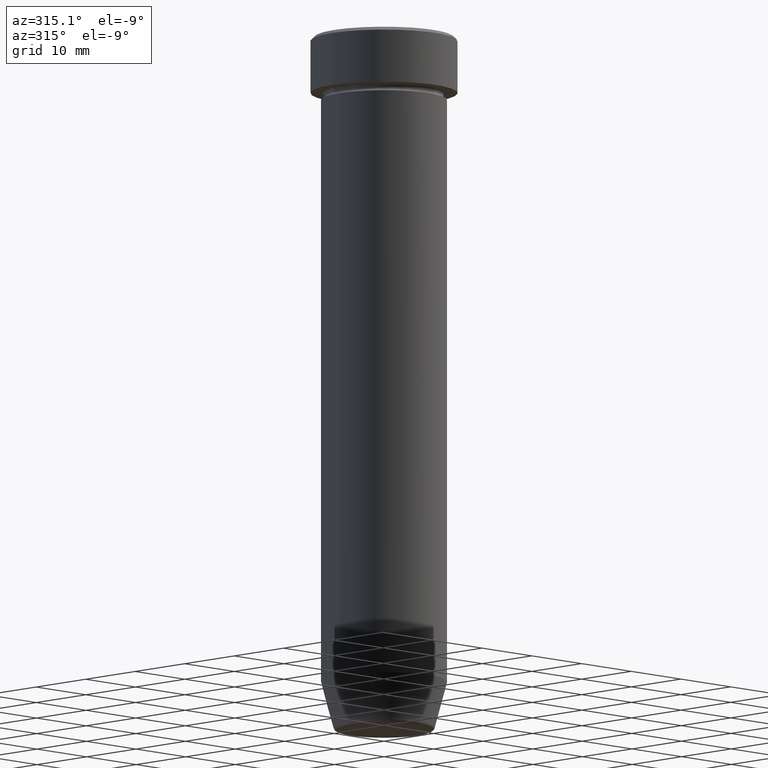
[diagram: clean part render]
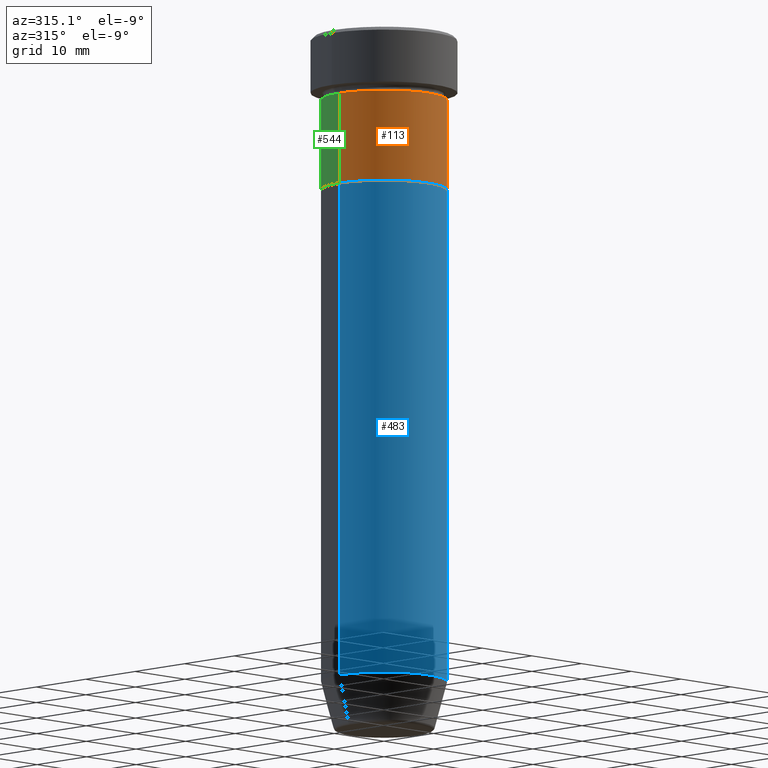
[diagram: same view with three faces highlighted in distinct colors, each labeled with its STEP entity id]
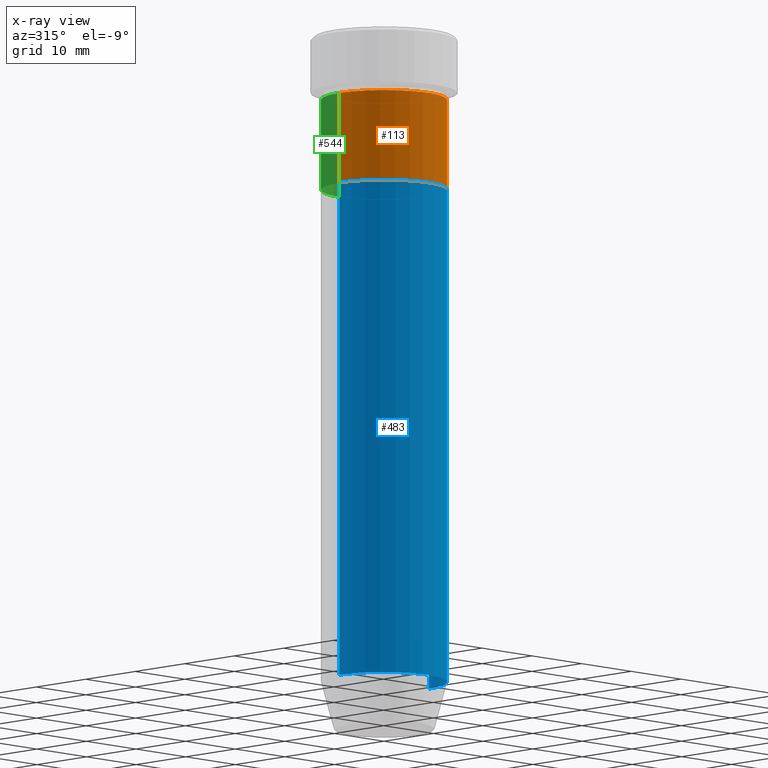
[diagram: x-ray of the same camera — body ghosted, the three highlighted faces saturated]
A machine part, auxiliary view with three faces highlighted in distinct colors.
The next image is the same camera in x-ray (body ghosted, the three faces saturated) — at least one of them is partly hidden behind the body in this view.
Their STEP definitions:

[orange] entity #113 — the highlighted cylindrical surface (partial cylindrical patch) has radius 9 mm, axis along (-0, -0, 1).
#11 = LINE ( 'NONE', #205, #412 ) ;
#14 = CARTESIAN_POINT ( 'NONE',  ( -9.000000000000000000, 1.102182119232617714E-15, -9.000000000000001776 ) ) ;
#53 = DIRECTION ( 'NONE',  ( -0.000000000000000000, -0.000000000000000000, 1.000000000000000000 ) ) ;
#68 = CARTESIAN_POINT ( 'NONE',  ( 0.000000000000000000, 0.000000000000000000, -22.00000000000000000 ) ) ;
#113 = ADVANCED_FACE ( 'NONE', ( #186 ), #327, .T. ) ;
#128 = ORIENTED_EDGE ( 'NONE', *, *, #240, .T. ) ;
#167 = CARTESIAN_POINT ( 'NONE',  ( -9.000000000000000000, 1.102182119232617714E-15, 0.000000000000000000 ) ) ;
#169 = LINE ( 'NONE', #167, #596 ) ;
#186 = FACE_OUTER_BOUND ( 'NONE', #455, .T. ) ;
#193 = EDGE_CURVE ( 'NONE', #239, #295, #476, .T. ) ;
#205 = CARTESIAN_POINT ( 'NONE',  ( 9.000000000000000000, 0.000000000000000000, 0.000000000000000000 ) ) ;
#239 = VERTEX_POINT ( 'NONE', #14 ) ;
#240 = EDGE_CURVE ( 'NONE', #400, #295, #11, .T. ) ;
#295 = VERTEX_POINT ( 'NONE', #535 ) ;
#297 = ORIENTED_EDGE ( 'NONE', *, *, #193, .F. ) ;
#307 = DIRECTION ( 'NONE',  ( -0.000000000000000000, -0.000000000000000000, 1.000000000000000000 ) ) ;
#309 = DIRECTION ( 'NONE',  ( -0.000000000000000000, -0.000000000000000000, 1.000000000000000000 ) ) ;
#327 = CYLINDRICAL_SURFACE ( 'NONE', #585, 9.000000000000000000 ) ;
#330 = EDGE_CURVE ( 'NONE', #583, #239, #169, .T. ) ;
#332 = CARTESIAN_POINT ( 'NONE',  ( 0.000000000000000000, 0.000000000000000000, 0.000000000000000000 ) ) ;
#340 = AXIS2_PLACEMENT_3D ( 'NONE', #516, #53, #473 ) ;
#343 = EDGE_CURVE ( 'NONE', #583, #400, #472, .T. ) ;
#364 = CARTESIAN_POINT ( 'NONE',  ( -9.000000000000000000, 1.102182119232617714E-15, -22.00000000000000000 ) ) ;
#400 = VERTEX_POINT ( 'NONE', #447 ) ;
#408 = ORIENTED_EDGE ( 'NONE', *, *, #343, .T. ) ;
#412 = VECTOR ( 'NONE', #564, 1000.000000000000000 ) ;
#441 = AXIS2_PLACEMENT_3D ( 'NONE', #68, #309, #541 ) ;
#447 = CARTESIAN_POINT ( 'NONE',  ( 9.000000000000000000, 0.000000000000000000, -22.00000000000000000 ) ) ;
#455 = EDGE_LOOP ( 'NONE', ( #474, #408, #128, #297 ) ) ;
#471 = DIRECTION ( 'NONE',  ( 1.000000000000000000, 0.000000000000000000, 0.000000000000000000 ) ) ;
#472 = CIRCLE ( 'NONE', #441, 9.000000000000000000 ) ;
#473 = DIRECTION ( 'NONE',  ( 1.000000000000000000, 0.000000000000000000, 0.000000000000000000 ) ) ;
#474 = ORIENTED_EDGE ( 'NONE', *, *, #330, .F. ) ;
#476 = CIRCLE ( 'NONE', #340, 9.000000000000000000 ) ;
#508 = DIRECTION ( 'NONE',  ( -0.000000000000000000, -0.000000000000000000, 1.000000000000000000 ) ) ;
#516 = CARTESIAN_POINT ( 'NONE',  ( 0.000000000000000000, 0.000000000000000000, -9.000000000000001776 ) ) ;
#535 = CARTESIAN_POINT ( 'NONE',  ( 9.000000000000000000, 0.000000000000000000, -9.000000000000001776 ) ) ;
#541 = DIRECTION ( 'NONE',  ( 1.000000000000000000, 0.000000000000000000, 0.000000000000000000 ) ) ;
#564 = DIRECTION ( 'NONE',  ( -0.000000000000000000, -0.000000000000000000, 1.000000000000000000 ) ) ;
#583 = VERTEX_POINT ( 'NONE', #364 ) ;
#585 = AXIS2_PLACEMENT_3D ( 'NONE', #332, #508, #471 ) ;
#596 = VECTOR ( 'NONE', #307, 1000.000000000000000 ) ;

[blue] entity #483 — the highlighted cylindrical surface (partial cylindrical patch) has radius 9 mm, axis along (-0, -0, 1).
#15 = ORIENTED_EDGE ( 'NONE', *, *, #62, .T. ) ;
#29 = VERTEX_POINT ( 'NONE', #46 ) ;
#34 = EDGE_CURVE ( 'NONE', #73, #352, #136, .T. ) ;
#35 = AXIS2_PLACEMENT_3D ( 'NONE', #599, #324, #271 ) ;
#46 = CARTESIAN_POINT ( 'NONE',  ( 9.000000000000000000, 0.000000000000000000, -22.00000000000000000 ) ) ;
#62 = EDGE_CURVE ( 'NONE', #73, #105, #302, .T. ) ;
#73 = VERTEX_POINT ( 'NONE', #427 ) ;
#98 = DIRECTION ( 'NONE',  ( -0.000000000000000000, -0.000000000000000000, 1.000000000000000000 ) ) ;
#101 = CARTESIAN_POINT ( 'NONE',  ( 0.000000000000000000, 0.000000000000000000, -22.00000000000000000 ) ) ;
#105 = VERTEX_POINT ( 'NONE', #418 ) ;
#114 = CARTESIAN_POINT ( 'NONE',  ( 0.000000000000000000, 0.000000000000000000, 0.000000000000000000 ) ) ;
#136 = LINE ( 'NONE', #556, #486 ) ;
#168 = ORIENTED_EDGE ( 'NONE', *, *, #196, .F. ) ;
#196 = EDGE_CURVE ( 'NONE', #352, #29, #217, .T. ) ;
#217 = CIRCLE ( 'NONE', #422, 9.000000000000000000 ) ;
#243 = DIRECTION ( 'NONE',  ( -0.000000000000000000, -0.000000000000000000, 1.000000000000000000 ) ) ;
#271 = DIRECTION ( 'NONE',  ( 1.000000000000000000, 0.000000000000000000, 0.000000000000000000 ) ) ;
#302 = CIRCLE ( 'NONE', #35, 9.000000000000000000 ) ;
#304 = DIRECTION ( 'NONE',  ( -0.000000000000000000, -0.000000000000000000, 1.000000000000000000 ) ) ;
#317 = CARTESIAN_POINT ( 'NONE',  ( 9.000000000000000000, 0.000000000000000000, 0.000000000000000000 ) ) ;
#324 = DIRECTION ( 'NONE',  ( -0.000000000000000000, -0.000000000000000000, 1.000000000000000000 ) ) ;
#337 = DIRECTION ( 'NONE',  ( 1.000000000000000000, 0.000000000000000000, 0.000000000000000000 ) ) ;
#350 = CARTESIAN_POINT ( 'NONE',  ( -9.000000000000000000, 1.102182119232617714E-15, -22.00000000000000000 ) ) ;
#352 = VERTEX_POINT ( 'NONE', #350 ) ;
#369 = EDGE_CURVE ( 'NONE', #105, #29, #399, .T. ) ;
#396 = FACE_OUTER_BOUND ( 'NONE', #452, .T. ) ;
#399 = LINE ( 'NONE', #317, #531 ) ;
#418 = CARTESIAN_POINT ( 'NONE',  ( 9.000000000000000000, 0.000000000000000000, -93.00000000000000000 ) ) ;
#422 = AXIS2_PLACEMENT_3D ( 'NONE', #101, #243, #337 ) ;
#423 = AXIS2_PLACEMENT_3D ( 'NONE', #114, #304, #489 ) ;
#427 = CARTESIAN_POINT ( 'NONE',  ( -9.000000000000000000, 1.102182119232617714E-15, -93.00000000000000000 ) ) ;
#438 = ORIENTED_EDGE ( 'NONE', *, *, #369, .T. ) ;
#452 = EDGE_LOOP ( 'NONE', ( #563, #15, #438, #168 ) ) ;
#483 = ADVANCED_FACE ( 'NONE', ( #396 ), #528, .T. ) ;
#486 = VECTOR ( 'NONE', #98, 1000.000000000000000 ) ;
#489 = DIRECTION ( 'NONE',  ( 1.000000000000000000, 0.000000000000000000, 0.000000000000000000 ) ) ;
#528 = CYLINDRICAL_SURFACE ( 'NONE', #423, 9.000000000000000000 ) ;
#531 = VECTOR ( 'NONE', #533, 1000.000000000000000 ) ;
#533 = DIRECTION ( 'NONE',  ( -0.000000000000000000, -0.000000000000000000, 1.000000000000000000 ) ) ;
#556 = CARTESIAN_POINT ( 'NONE',  ( -9.000000000000000000, 1.102182119232617714E-15, 0.000000000000000000 ) ) ;
#563 = ORIENTED_EDGE ( 'NONE', *, *, #34, .F. ) ;
#599 = CARTESIAN_POINT ( 'NONE',  ( 0.000000000000000000, 0.000000000000000000, -93.00000000000000000 ) ) ;

[green] entity #544 — the highlighted cylindrical surface (partial cylindrical patch) has radius 9 mm, axis along (-0, -0, 1).
#5 = CIRCLE ( 'NONE', #575, 9.000000000000000000 ) ;
#11 = LINE ( 'NONE', #205, #412 ) ;
#14 = CARTESIAN_POINT ( 'NONE',  ( -9.000000000000000000, 1.102182119232617714E-15, -9.000000000000001776 ) ) ;
#56 = CARTESIAN_POINT ( 'NONE',  ( 0.000000000000000000, 0.000000000000000000, -22.00000000000000000 ) ) ;
#140 = EDGE_CURVE ( 'NONE', #295, #239, #5, .T. ) ;
#163 = ORIENTED_EDGE ( 'NONE', *, *, #240, .F. ) ;
#167 = CARTESIAN_POINT ( 'NONE',  ( -9.000000000000000000, 1.102182119232617714E-15, 0.000000000000000000 ) ) ;
#169 = LINE ( 'NONE', #167, #596 ) ;
#182 = EDGE_CURVE ( 'NONE', #400, #583, #449, .T. ) ;
#189 = DIRECTION ( 'NONE',  ( 1.000000000000000000, 0.000000000000000000, 0.000000000000000000 ) ) ;
#205 = CARTESIAN_POINT ( 'NONE',  ( 9.000000000000000000, 0.000000000000000000, 0.000000000000000000 ) ) ;
#225 = AXIS2_PLACEMENT_3D ( 'NONE', #322, #419, #189 ) ;
#226 = CYLINDRICAL_SURFACE ( 'NONE', #225, 9.000000000000000000 ) ;
#231 = FACE_OUTER_BOUND ( 'NONE', #308, .T. ) ;
#238 = DIRECTION ( 'NONE',  ( 1.000000000000000000, 0.000000000000000000, 0.000000000000000000 ) ) ;
#239 = VERTEX_POINT ( 'NONE', #14 ) ;
#240 = EDGE_CURVE ( 'NONE', #400, #295, #11, .T. ) ;
#251 = AXIS2_PLACEMENT_3D ( 'NONE', #56, #484, #335 ) ;
#285 = DIRECTION ( 'NONE',  ( -0.000000000000000000, -0.000000000000000000, 1.000000000000000000 ) ) ;
#295 = VERTEX_POINT ( 'NONE', #535 ) ;
#307 = DIRECTION ( 'NONE',  ( -0.000000000000000000, -0.000000000000000000, 1.000000000000000000 ) ) ;
#308 = EDGE_LOOP ( 'NONE', ( #446, #429, #491, #163 ) ) ;
#322 = CARTESIAN_POINT ( 'NONE',  ( 0.000000000000000000, 0.000000000000000000, 0.000000000000000000 ) ) ;
#330 = EDGE_CURVE ( 'NONE', #583, #239, #169, .T. ) ;
#335 = DIRECTION ( 'NONE',  ( 1.000000000000000000, 0.000000000000000000, 0.000000000000000000 ) ) ;
#364 = CARTESIAN_POINT ( 'NONE',  ( -9.000000000000000000, 1.102182119232617714E-15, -22.00000000000000000 ) ) ;
#400 = VERTEX_POINT ( 'NONE', #447 ) ;
#412 = VECTOR ( 'NONE', #564, 1000.000000000000000 ) ;
#419 = DIRECTION ( 'NONE',  ( -0.000000000000000000, -0.000000000000000000, 1.000000000000000000 ) ) ;
#426 = CARTESIAN_POINT ( 'NONE',  ( 0.000000000000000000, 0.000000000000000000, -9.000000000000001776 ) ) ;
#429 = ORIENTED_EDGE ( 'NONE', *, *, #330, .T. ) ;
#446 = ORIENTED_EDGE ( 'NONE', *, *, #182, .T. ) ;
#447 = CARTESIAN_POINT ( 'NONE',  ( 9.000000000000000000, 0.000000000000000000, -22.00000000000000000 ) ) ;
#449 = CIRCLE ( 'NONE', #251, 9.000000000000000000 ) ;
#484 = DIRECTION ( 'NONE',  ( -0.000000000000000000, -0.000000000000000000, 1.000000000000000000 ) ) ;
#491 = ORIENTED_EDGE ( 'NONE', *, *, #140, .F. ) ;
#535 = CARTESIAN_POINT ( 'NONE',  ( 9.000000000000000000, 0.000000000000000000, -9.000000000000001776 ) ) ;
#544 = ADVANCED_FACE ( 'NONE', ( #231 ), #226, .T. ) ;
#564 = DIRECTION ( 'NONE',  ( -0.000000000000000000, -0.000000000000000000, 1.000000000000000000 ) ) ;
#575 = AXIS2_PLACEMENT_3D ( 'NONE', #426, #285, #238 ) ;
#583 = VERTEX_POINT ( 'NONE', #364 ) ;
#596 = VECTOR ( 'NONE', #307, 1000.000000000000000 ) ;